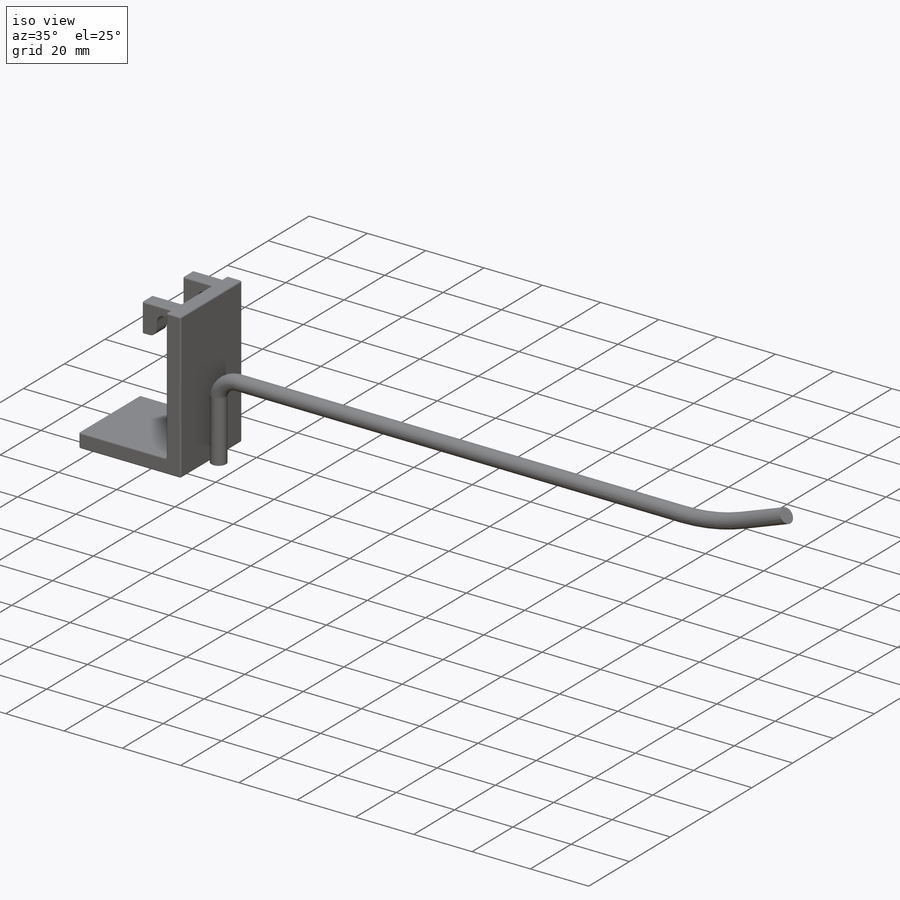
[diagram: iso view]
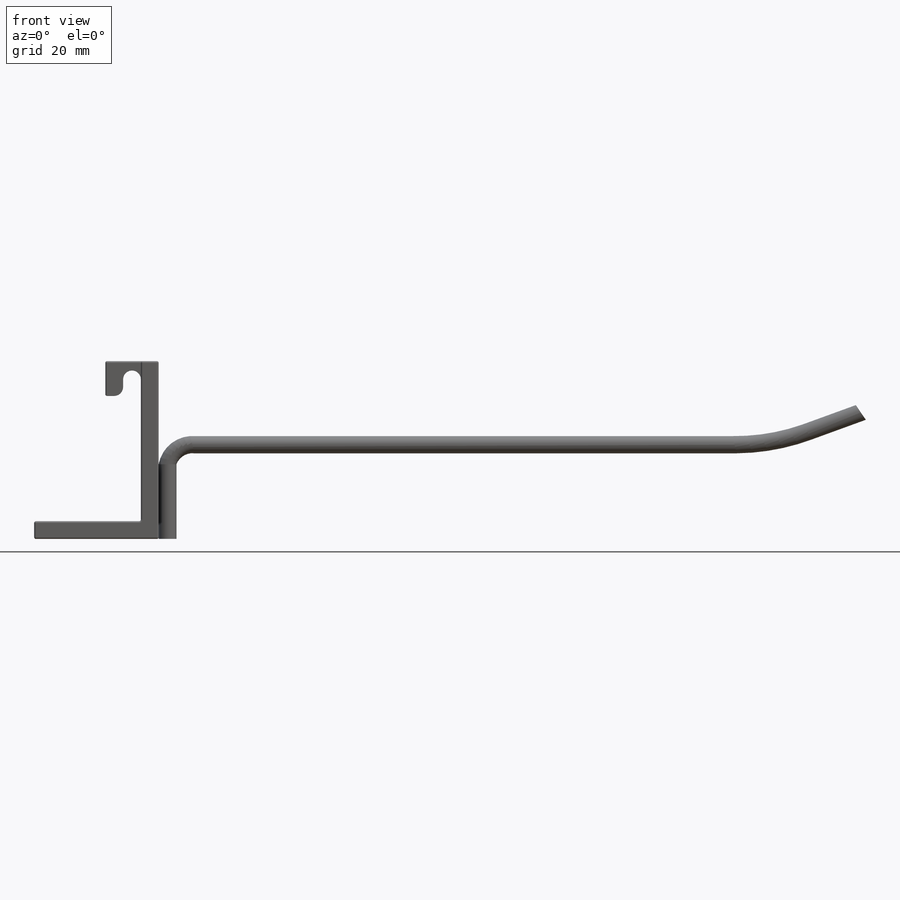
[diagram: front view]
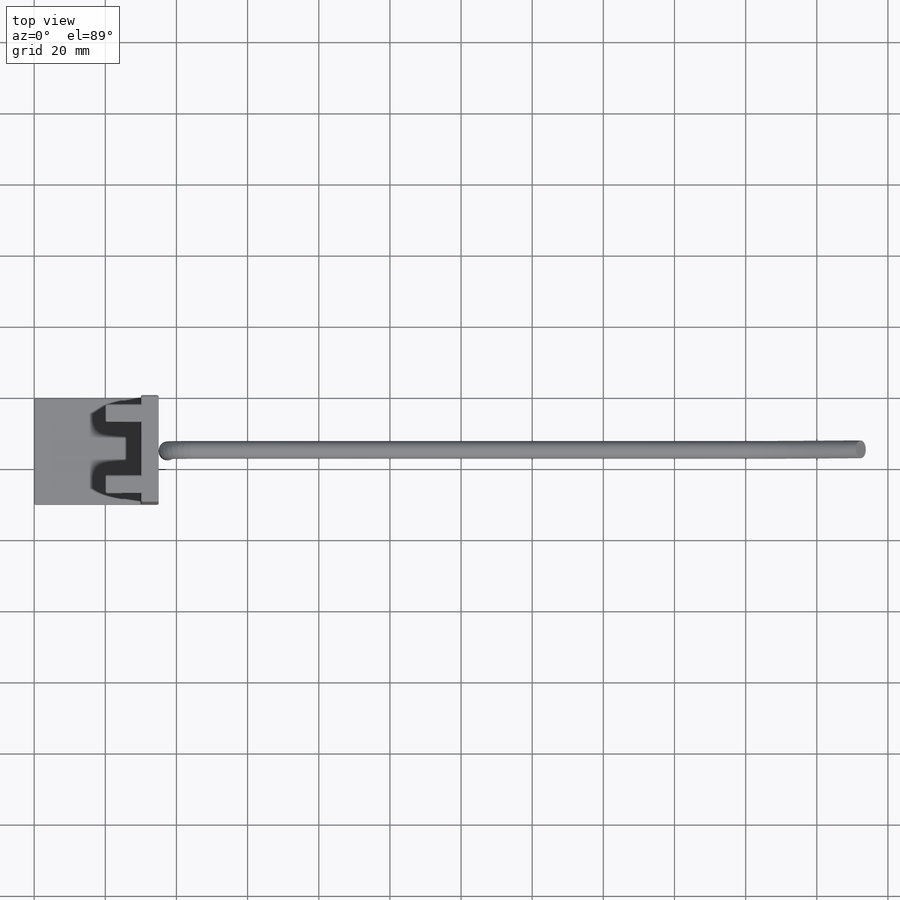
[diagram: top view]
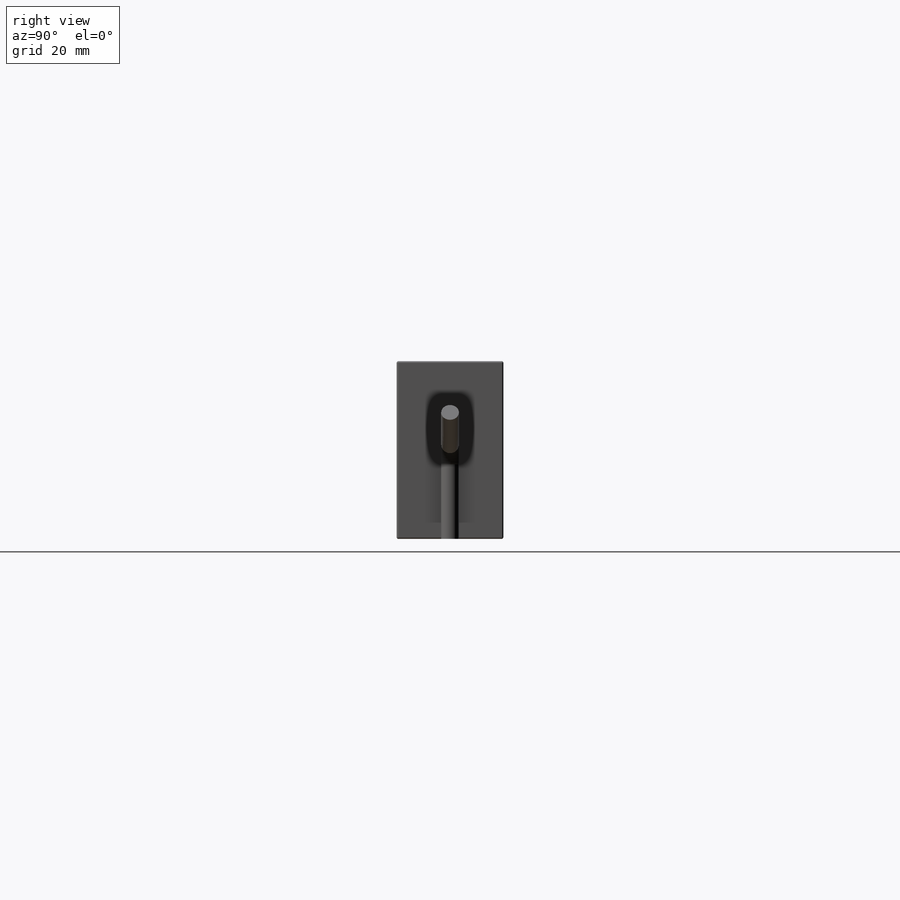
[diagram: right view]
SOLIDWORKS PART (.sldprt)
format: sldprt  version: not decoded by parser v0  size: 334,848 bytes
history: native  units: mm
features: sketch x8, cut_extrude x4, plane x3, fillet x3, extrude x2, material x1, sweep x1 (+13 scaffold rows collapsed)
feature tree (35):
  scaffold x13  (default folders/planes/origin — collapsed)
  material  "Material <not specified>"
  plane  "Plano frontal"
  plane  "Plano superior"
  plane  "Plano direito"
  sketch  "Sketch1"  dims[D1=50.0mm D2=200.0mm]
  extrude  "Boss-Extrude1"  Depth=30mm
  sketch  "Sketch2"  dims[D1=20.0mm D2=45.0mm]
  cut_extrude  "Cut-Extrude1"  Depth=30mm
  sketch  "Sketch3"  dims[c1.D6=5.0mm c1.D7=5.0mm c1.D1=3.0mm c1.D2=42.0mm c1.D3=5.0mm c1.D4=~37.683123mm c1.D5=5.0mm c2.D7=2.5mm]
  cut_extrude  "Cut-Extrude2"  Depth=30mm
  sketch  "Sketch4"  dims[D1=5.0mm D2=5.0mm D3=15.0mm D4=2.5mm]
  cut_extrude  "Cut-Extrude5"  Depth=10mm
  sketch  "Sketch6"  dims[D1=5.0mm]
  cut_extrude  "Cut-Extrude7"  Depth=80mm
  fillet  "Fillet5"  Radius=0.5mm
  fillet  "Fillet6"  Radius=0.5mm
  fillet  "Fillet7"  Radius=0.5mm
  sketch  "Sketch8"  dims[c1.D7=60.0mm c1.D8=7.0mm c1.D1=300.0mm c1.D2=20.0mm c1.D3=170.0mm c1.D4=2.5mm c1.D5=25.0mm c1.D6=170.0mm c2.D6=20.0deg]
  sketch  "Sketch9"  dims[D1=5.0mm D2=15.0mm]
  extrude  "Boss-Extrude3"  Depth=21mm
  sketch  "Sketch10"
  sweep  "Sweep3"
decode coverage: 16 of 18 modeling features carry decoded parameters
note: ~ marks probable driven/reference dimensions
note: suppression state not decoded; provenance and decode notes live in map.json
